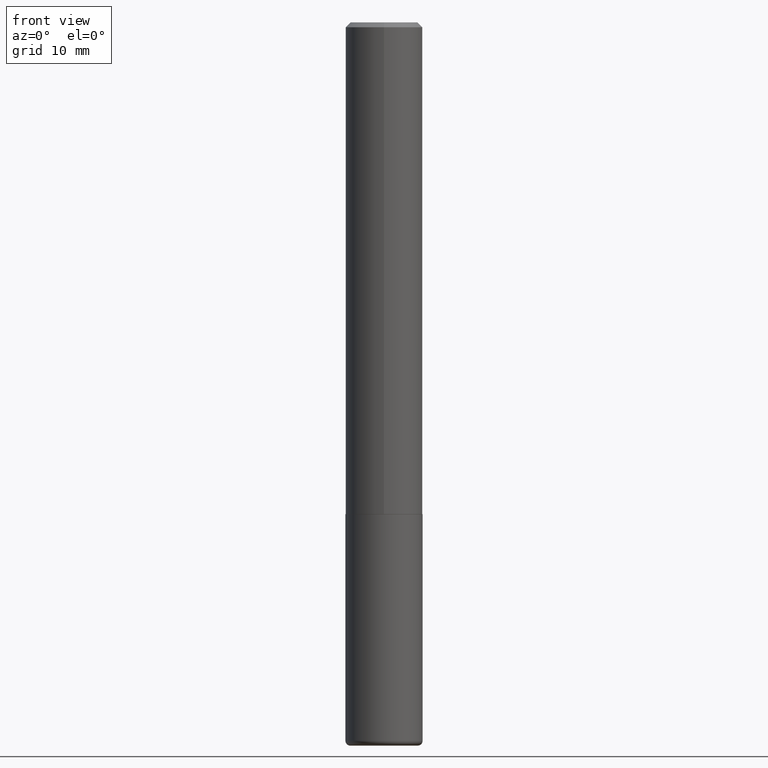
[diagram: clean part render]
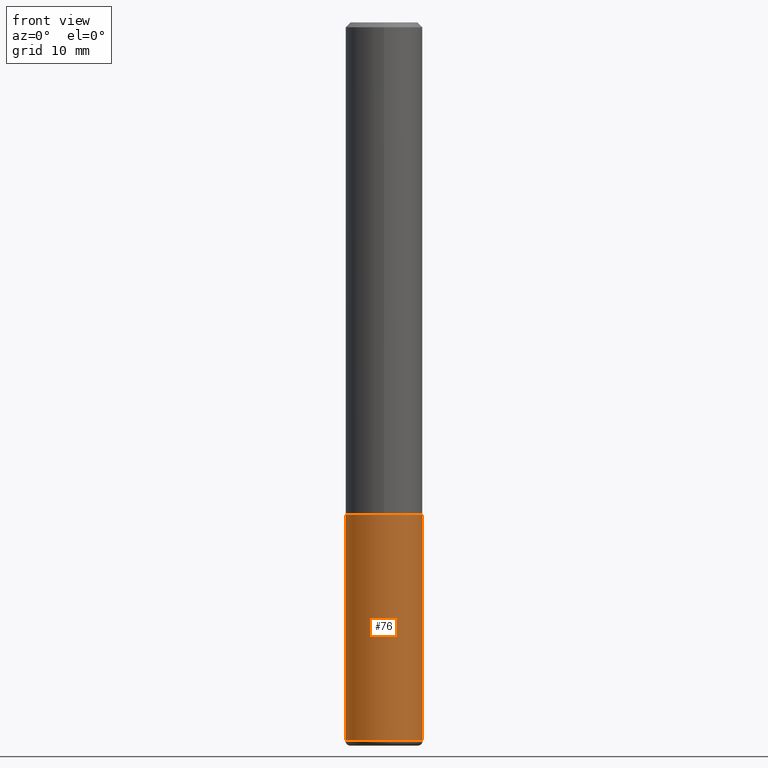
[diagram: same view with one face highlighted and labeled with its STEP entity id]
A machine part, front view. The second image highlights one B-rep face of the part: STEP entity #76.
In plain terms, the highlighted cylindrical surface (partial cylindrical patch) has radius 4.0005 mm, axis along (-0, 0, 1).
Its self-contained STEP definition (entity closure, byte-faithful):
#27 = VERTEX_POINT ( 'NONE', #207 ) ;
#28 = CARTESIAN_POINT ( 'NONE',  ( 0.1575000000000000011, -1.099816621735586889E-15, 7.679978421878598033E-30 ) ) ;
#40 = EDGE_CURVE ( 'NONE', #362, #381, #369, .T. ) ;
#41 = CARTESIAN_POINT ( 'NONE',  ( -0.1575000000000000011, 1.119104808822157801E-15, -7.747322767151475583E-30 ) ) ;
#72 = DIRECTION ( 'NONE',  ( 1.000000000000000000, -6.982962677686261977E-15, 0.000000000000000000 ) ) ;
#76 = ADVANCED_FACE ( 'NONE', ( #263 ), #137, .T. ) ;
#94 = CARTESIAN_POINT ( 'NONE',  ( 0.1574999999999998346, -1.134068053669641403E-14, -2.933100000000000041 ) ) ;
#103 = DIRECTION ( 'NONE',  ( -2.445468806185136877E-29, 3.491481338843145188E-15, 1.000000000000000000 ) ) ;
#111 = CARTESIAN_POINT ( 'NONE',  ( 0.000000000000000000, 0.000000000000000000, 0.000000000000000000 ) ) ;
#116 = AXIS2_PLACEMENT_3D ( 'NONE', #360, #163, #72 ) ;
#126 = LINE ( 'NONE', #28, #204 ) ;
#127 = ORIENTED_EDGE ( 'NONE', *, *, #40, .F. ) ;
#137 = CYLINDRICAL_SURFACE ( 'NONE', #355, 0.1575000000000000011 ) ;
#143 = VECTOR ( 'NONE', #103, 39.37007874015748143 ) ;
#163 = DIRECTION ( 'NONE',  ( -2.445468806185136597E-29, 3.491481338843145583E-15, 1.000000000000000000 ) ) ;
#195 = CARTESIAN_POINT ( 'NONE',  ( 0.1575000000000000011, -8.110362001998737613E-15, -2.007899999999999796 ) ) ;
#196 = AXIS2_PLACEMENT_3D ( 'NONE', #301, #372, #199 ) ;
#199 = DIRECTION ( 'NONE',  ( 1.000000000000000000, -6.982962677686268288E-15, 0.000000000000000000 ) ) ;
#204 = VECTOR ( 'NONE', #386, 39.37007874015748143 ) ;
#207 = CARTESIAN_POINT ( 'NONE',  ( -0.1574999999999998346, -9.121759106138672895E-15, -2.933100000000000041 ) ) ;
#223 = EDGE_CURVE ( 'NONE', #249, #381, #126, .T. ) ;
#226 = DIRECTION ( 'NONE',  ( -2.445468806185136597E-29, 3.491481338843145583E-15, 1.000000000000000000 ) ) ;
#241 = ORIENTED_EDGE ( 'NONE', *, *, #329, .F. ) ;
#249 = VERTEX_POINT ( 'NONE', #94 ) ;
#261 = DIRECTION ( 'NONE',  ( 1.000000000000000000, -6.982962677686265922E-15, 4.876176775795935232E-29 ) ) ;
#263 = FACE_OUTER_BOUND ( 'NONE', #353, .T. ) ;
#298 = EDGE_CURVE ( 'NONE', #27, #249, #326, .T. ) ;
#301 = CARTESIAN_POINT ( 'NONE',  ( 4.910256815939135309E-29, -7.010545380263150922E-15, -2.007899999999999796 ) ) ;
#317 = ORIENTED_EDGE ( 'NONE', *, *, #223, .T. ) ;
#326 = CIRCLE ( 'NONE', #116, 0.1575000000000000011 ) ;
#329 = EDGE_CURVE ( 'NONE', #27, #362, #331, .T. ) ;
#331 = LINE ( 'NONE', #41, #143 ) ;
#353 = EDGE_LOOP ( 'NONE', ( #241, #412, #317, #127 ) ) ;
#355 = AXIS2_PLACEMENT_3D ( 'NONE', #111, #226, #261 ) ;
#360 = CARTESIAN_POINT ( 'NONE',  ( 7.172804555421624566E-29, -1.024086391496083050E-14, -2.933100000000000041 ) ) ;
#362 = VERTEX_POINT ( 'NONE', #363 ) ;
#363 = CARTESIAN_POINT ( 'NONE',  ( -0.1575000000000000011, -7.506599838789833107E-15, -2.007899999999999796 ) ) ;
#369 = CIRCLE ( 'NONE', #196, 0.1575000000000000011 ) ;
#372 = DIRECTION ( 'NONE',  ( -2.445468806185136597E-29, 3.491481338843145583E-15, 1.000000000000000000 ) ) ;
#381 = VERTEX_POINT ( 'NONE', #195 ) ;
#386 = DIRECTION ( 'NONE',  ( -2.445468806185136877E-29, 3.491481338843145188E-15, 1.000000000000000000 ) ) ;
#412 = ORIENTED_EDGE ( 'NONE', *, *, #298, .T. ) ;